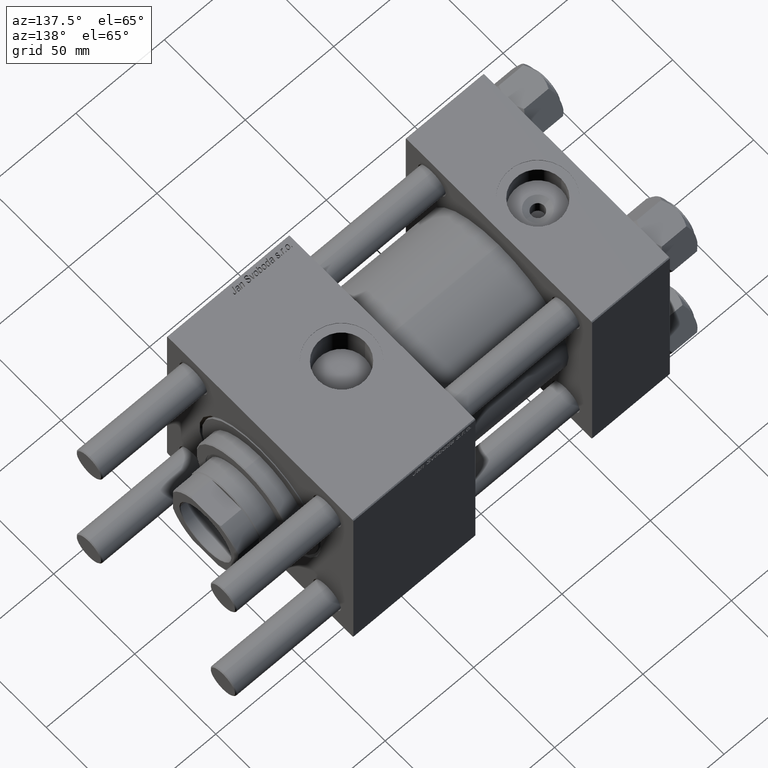
[diagram: clean part render]
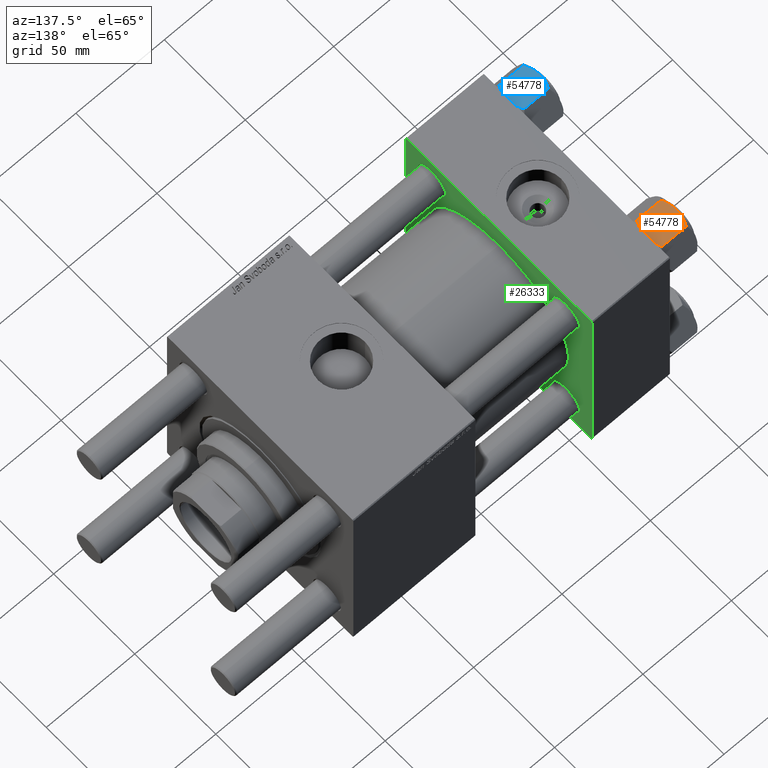
[diagram: same view with three faces highlighted in distinct colors, each labeled with its STEP entity id]
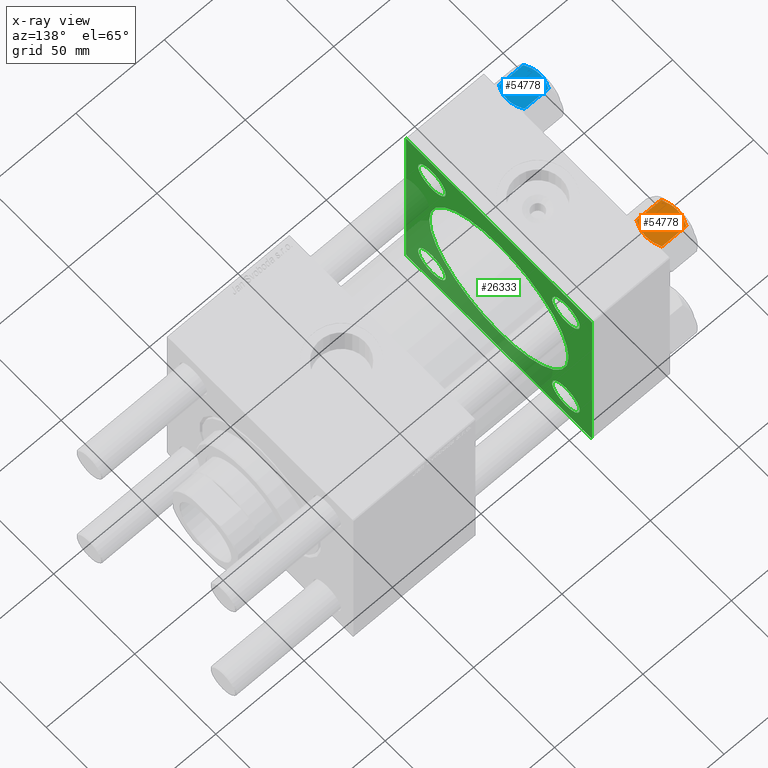
[diagram: x-ray of the same camera — body ghosted, the three highlighted faces saturated]
A machine part, auxiliary view with three faces highlighted in distinct colors.
The next image is the same camera in x-ray (body ghosted, the three faces saturated) — at least one of them is partly hidden behind the body in this view.
Their STEP definitions:

[orange] entity #54778 — the highlighted planar face has unit normal (-0, -0.0859, -0.9963).
#140 = DIRECTION ( 'NONE',  ( 1.000000000000000000, 2.221156819432531199E-16, -0.000000000000000000 ) ) ;
#253 = DIRECTION ( 'NONE',  ( 1.000000000000000000, 2.221156819432531199E-16, -0.000000000000000000 ) ) ;
#713 = CARTESIAN_POINT ( 'NONE',  ( -7.622943475354625242, -13.52731680711293727, -16.00000000000000000 ) ) ;
#2074 = CARTESIAN_POINT ( 'NONE',  ( 5.184073258379394922, -13.52731680711293549, -0.9481437906500860269 ) ) ;
#2230 = DIRECTION ( 'NONE',  ( -1.000000000000000000, -2.221156819432531199E-16, 0.000000000000000000 ) ) ;
#3925 = CARTESIAN_POINT ( 'NONE',  ( -3.287826776903143067, -13.52731680711293727, -17.61954155462465366 ) ) ;
#3980 = CARTESIAN_POINT ( 'NONE',  ( 2.638177715023103609, -13.52731680711293372, -17.79984593233010415 ) ) ;
#4050 = CARTESIAN_POINT ( 'NONE',  ( -7.030888348548045563, -13.52731680711293549, -1.709337883550298365 ) ) ;
#4112 = LINE ( 'NONE', #53209, #48652 ) ;
#4316 = ORIENTED_EDGE ( 'NONE', *, *, #39283, .F. ) ;
#5178 = LINE ( 'NONE', #22811, #38201 ) ;
#6988 = CARTESIAN_POINT ( 'NONE',  ( 4.557734399832408023, -13.52731680711293549, -0.7341470174115197755 ) ) ;
#7076 = DIRECTION ( 'NONE',  ( -2.221156819432531199E-16, 1.000000000000000000, 0.000000000000000000 ) ) ;
#7444 = CARTESIAN_POINT ( 'NONE',  ( 7.622943475354630571, -13.52731680711293372, -16.00000000000000000 ) ) ;
#7971 = ORIENTED_EDGE ( 'NONE', *, *, #43577, .F. ) ;
#8256 = ORIENTED_EDGE ( 'NONE', *, *, #55061, .T. ) ;
#8543 = CARTESIAN_POINT ( 'NONE',  ( -5.184073258379385152, -13.52731680711293727, -17.05185620934990709 ) ) ;
#9892 = CARTESIAN_POINT ( 'NONE',  ( 3.004629197474317274E-15, -13.52731680711292839, 0.000000000000000000 ) ) ;
#10160 = CARTESIAN_POINT ( 'NONE',  ( 7.810000000000002274, -13.52731680711293372, -16.00000000000000000 ) ) ;
#11169 = VERTEX_POINT ( 'NONE', #17509 ) ;
#11415 = PLANE ( 'NONE',  #36717 ) ;
#11909 = CARTESIAN_POINT ( 'NONE',  ( -7.622943475354625242, -13.52731680711293727, -2.000000000000000000 ) ) ;
#12090 = VERTEX_POINT ( 'NONE', #37434 ) ;
#12566 = DIRECTION ( 'NONE',  ( -0.000000000000000000, -0.000000000000000000, 1.000000000000000000 ) ) ;
#13004 = CARTESIAN_POINT ( 'NONE',  ( -5.189513245496318206, -13.52731680711293727, -0.9501108431732617765 ) ) ;
#16187 = ORIENTED_EDGE ( 'NONE', *, *, #52486, .F. ) ;
#16215 = ORIENTED_EDGE ( 'NONE', *, *, #20428, .F. ) ;
#16954 = LINE ( 'NONE', #43529, #27260 ) ;
#17351 = CARTESIAN_POINT ( 'NONE',  ( -6.427364677720459163, -13.52731680711293905, -1.438506937155141996 ) ) ;
#17509 = CARTESIAN_POINT ( 'NONE',  ( 7.810000000000002274, -13.52731680711293372, -1.999999999999998224 ) ) ;
#17788 = CARTESIAN_POINT ( 'NONE',  ( -0.3330234424833806162, -13.52731680711293727, -17.99999999999999645 ) ) ;
#18351 = CARTESIAN_POINT ( 'NONE',  ( -1.333889873825127026, -13.52731680711293727, -17.93843358996560156 ) ) ;
#18702 = EDGE_CURVE ( 'NONE', #12090, #36577, #16954, .T. ) ;
#19422 = CARTESIAN_POINT ( 'NONE',  ( 1.663410456966173623, -13.52731680711293549, -0.09804949135699765617 ) ) ;
#19524 = ORIENTED_EDGE ( 'NONE', *, *, #49442, .F. ) ;
#20173 = CARTESIAN_POINT ( 'NONE',  ( -7.809999999999999609, -13.52731680711293727, -16.00000000000000000 ) ) ;
#20428 = EDGE_CURVE ( 'NONE', #33784, #42801, #32140, .T. ) ;
#20549 = EDGE_LOOP ( 'NONE', ( #16215, #8256, #4316, #26729, #54445, #20798, #19524, #7971, #16187, #51028 ) ) ;
#20593 = EDGE_CURVE ( 'NONE', #36577, #24789, #42082, .T. ) ;
#20798 = ORIENTED_EDGE ( 'NONE', *, *, #18702, .F. ) ;
#22792 = CARTESIAN_POINT ( 'NONE',  ( 7.810000000000002274, -13.52731680711293372, -16.00000000000000000 ) ) ;
#22811 = CARTESIAN_POINT ( 'NONE',  ( 7.810000000000002274, -13.52731680711293372, -1.999999999999998224 ) ) ;
#23809 = VERTEX_POINT ( 'NONE', #41676 ) ;
#24051 = CARTESIAN_POINT ( 'NONE',  ( 2.644243758052987836, -13.52731680711294082, -0.2408281198024052883 ) ) ;
#24789 = VERTEX_POINT ( 'NONE', #9892 ) ;
#25364 = CARTESIAN_POINT ( 'NONE',  ( 3.004629197474316879E-15, -13.52731680711292661, -18.00000000000000000 ) ) ;
#26455 = CARTESIAN_POINT ( 'NONE',  ( 7.622943475354630571, -13.52731680711293372, -16.00000000000000000 ) ) ;
#26458 = CARTESIAN_POINT ( 'NONE',  ( -7.030203932307560244, -13.52731680711293372, -16.29099812210859710 ) ) ;
#26578 = CARTESIAN_POINT ( 'NONE',  ( -4.553769687922295972, -13.52731680711293727, -0.7327291995145203130 ) ) ;
#26729 = ORIENTED_EDGE ( 'NONE', *, *, #47137, .F. ) ;
#27260 = VECTOR ( 'NONE', #140, 1000.000000000000000 ) ;
#29060 = CARTESIAN_POINT ( 'NONE',  ( -7.809999999999999609, -13.52731680711293727, -18.00000000000000000 ) ) ;
#29255 = CARTESIAN_POINT ( 'NONE',  ( 3.287826776903151504, -13.52731680711293372, -0.3804584453753439566 ) ) ;
#30207 = DIRECTION ( 'NONE',  ( -1.000000000000000000, -2.221156819432531199E-16, 0.000000000000000000 ) ) ;
#30520 = CARTESIAN_POINT ( 'NONE',  ( -0.6693083573771156924, -13.52731680711293549, -17.98750666918891028 ) ) ;
#32140 = LINE ( 'NONE', #10160, #35039 ) ;
#32447 = VERTEX_POINT ( 'NONE', #38451 ) ;
#33784 = VERTEX_POINT ( 'NONE', #22792 ) ;
#35039 = VECTOR ( 'NONE', #56351, 1000.000000000000000 ) ;
#35630 = CARTESIAN_POINT ( 'NONE',  ( -7.622943475354625242, -13.52731680711293727, -16.00000000000000000 ) ) ;
#35702 = B_SPLINE_CURVE_WITH_KNOTS ( 'NONE', 3,
 ( #40324, #17788, #30520, #18351, #35713, #48696, #3925, #39195, #8543, #53308, #26458, #713 ),
 .UNSPECIFIED., .F., .F.,
 ( 4, 2, 2, 2, 2, 4 ),
 ( 0.02774433486126546416, 0.02873404020403549919, 0.02972374554680553421, 0.03170315623234560426, 0.03368256691788567431, 0.03566197760342574435 ),
 .UNSPECIFIED. ) ;
#35713 = CARTESIAN_POINT ( 'NONE',  ( -1.663410456966165407, -13.52731680711293727, -17.90195050864300086 ) ) ;
#36577 = VERTEX_POINT ( 'NONE', #11909 ) ;
#36717 = AXIS2_PLACEMENT_3D ( 'NONE', #46964, #7076, #30207 ) ;
#37229 = LINE ( 'NONE', #51068, #47561 ) ;
#37434 = CARTESIAN_POINT ( 'NONE',  ( -7.809999999999999609, -13.52731680711293727, -1.999999999999998224 ) ) ;
#38201 = VECTOR ( 'NONE', #253, 1000.000000000000000 ) ;
#38451 = CARTESIAN_POINT ( 'NONE',  ( 7.622943475354630571, -13.52731680711293372, -2.000000000000000000 ) ) ;
#38670 = CARTESIAN_POINT ( 'NONE',  ( 1.335584685993413956, -13.52731680711293194, -17.99999999999998934 ) ) ;
#39035 = CARTESIAN_POINT ( 'NONE',  ( -7.622943475354625242, -13.52731680711293727, -2.000000000000000000 ) ) ;
#39195 = CARTESIAN_POINT ( 'NONE',  ( -4.557734399832399141, -13.52731680711293905, -17.26585298258847700 ) ) ;
#39283 = EDGE_CURVE ( 'NONE', #32447, #11169, #5178, .T. ) ;
#39649 = B_SPLINE_CURVE_WITH_KNOTS ( 'NONE', 3,
 ( #7444, #47330, #56001, #51951, #56855, #3980, #38670, #25364 ),
 .UNSPECIFIED., .F., .F.,
 ( 4, 2, 2, 4 ),
 ( 0.01980594295952731870, 0.02179054093496185507, 0.02377513891039638796, 0.02774433486126546416 ),
 .UNSPECIFIED. ) ;
#40324 = CARTESIAN_POINT ( 'NONE',  ( 3.004629197474316879E-15, -13.52731680711292661, -18.00000000000000000 ) ) ;
#41407 = CARTESIAN_POINT ( 'NONE',  ( 3.004629197474317274E-15, -13.52731680711292839, 0.000000000000000000 ) ) ;
#41676 = CARTESIAN_POINT ( 'NONE',  ( 3.004629197474316879E-15, -13.52731680711292661, -18.00000000000000000 ) ) ;
#41684 = CARTESIAN_POINT ( 'NONE',  ( 0.3330234424833872775, -13.52731680711293727, -6.997621521583519172E-15 ) ) ;
#42082 = B_SPLINE_CURVE_WITH_KNOTS ( 'NONE', 3,
 ( #39035, #4050, #17351, #13004, #26578, #48256, #48541, #44492 ),
 .UNSPECIFIED., .F., .F.,
 ( 4, 2, 2, 4 ),
 ( 0.01980594295952730829, 0.02179054093496184813, 0.02377513891039638450, 0.02774433486126546416 ),
 .UNSPECIFIED. ) ;
#42248 = CARTESIAN_POINT ( 'NONE',  ( 7.030203932307570902, -13.52731680711293549, -1.709001877891393351 ) ) ;
#42801 = VERTEX_POINT ( 'NONE', #26455 ) ;
#43529 = CARTESIAN_POINT ( 'NONE',  ( 7.810000000000002274, -13.52731680711293372, -1.999999999999998224 ) ) ;
#43577 = EDGE_CURVE ( 'NONE', #55647, #51306, #37229, .T. ) ;
#44492 = CARTESIAN_POINT ( 'NONE',  ( 3.004629197474317274E-15, -13.52731680711292839, 0.000000000000000000 ) ) ;
#45418 = EDGE_CURVE ( 'NONE', #42801, #23809, #39649, .T. ) ;
#45754 = CARTESIAN_POINT ( 'NONE',  ( 7.622943475354630571, -13.52731680711293372, -2.000000000000000000 ) ) ;
#46685 = FACE_OUTER_BOUND ( 'NONE', #20549, .T. ) ;
#46964 = CARTESIAN_POINT ( 'NONE',  ( 7.810000000000002274, -13.52731680711293372, -18.00000000000000000 ) ) ;
#47110 = B_SPLINE_CURVE_WITH_KNOTS ( 'NONE', 3,
 ( #41407, #41684, #50913, #54681, #19422, #24051, #29255, #6988, #2074, #54402, #42248, #45754 ),
 .UNSPECIFIED., .F., .F.,
 ( 4, 2, 2, 2, 2, 4 ),
 ( 0.02774433486126546416, 0.02873404020403549919, 0.02972374554680553421, 0.03170315623234560426, 0.03368256691788567431, 0.03566197760342574435 ),
 .UNSPECIFIED. ) ;
#47137 = EDGE_CURVE ( 'NONE', #24789, #32447, #47110, .T. ) ;
#47330 = CARTESIAN_POINT ( 'NONE',  ( 7.030888348548049116, -13.52731680711293372, -16.29066211644970608 ) ) ;
#47561 = VECTOR ( 'NONE', #2230, 1000.000000000000000 ) ;
#48256 = CARTESIAN_POINT ( 'NONE',  ( -2.638177715023101388, -13.52731680711293905, -0.2001540676698907728 ) ) ;
#48541 = CARTESIAN_POINT ( 'NONE',  ( -1.335584685993408405, -13.52731680711293727, -6.728829732988161894E-15 ) ) ;
#48652 = VECTOR ( 'NONE', #56704, 1000.000000000000000 ) ;
#48696 = CARTESIAN_POINT ( 'NONE',  ( -2.644243758052979398, -13.52731680711293905, -17.75917188019759507 ) ) ;
#49442 = EDGE_CURVE ( 'NONE', #51306, #12090, #55623, .T. ) ;
#50913 = CARTESIAN_POINT ( 'NONE',  ( 0.6693083573771239081, -13.52731680711293549, -0.01249333081108778241 ) ) ;
#51028 = ORIENTED_EDGE ( 'NONE', *, *, #45418, .F. ) ;
#51068 = CARTESIAN_POINT ( 'NONE',  ( 7.810000000000002274, -13.52731680711293372, -16.00000000000000000 ) ) ;
#51306 = VERTEX_POINT ( 'NONE', #20173 ) ;
#51951 = CARTESIAN_POINT ( 'NONE',  ( 5.189513245496319094, -13.52731680711293372, -17.04988915682674033 ) ) ;
#52486 = EDGE_CURVE ( 'NONE', #23809, #55647, #35702, .T. ) ;
#53209 = CARTESIAN_POINT ( 'NONE',  ( 7.810000000000002274, -13.52731680711293372, -18.00000000000000000 ) ) ;
#53308 = CARTESIAN_POINT ( 'NONE',  ( -6.422751913021801151, -13.52731680711293905, -16.56349088907410305 ) ) ;
#54036 = VECTOR ( 'NONE', #12566, 1000.000000000000000 ) ;
#54402 = CARTESIAN_POINT ( 'NONE',  ( 6.422751913021812697, -13.52731680711293727, -1.436509110925896948 ) ) ;
#54445 = ORIENTED_EDGE ( 'NONE', *, *, #20593, .F. ) ;
#54681 = CARTESIAN_POINT ( 'NONE',  ( 1.333889873825134131, -13.52731680711293194, -0.06156641003440004034 ) ) ;
#54778 = ADVANCED_FACE ( 'NONE', ( #46685 ), #11415, .F. ) ;
#55061 = EDGE_CURVE ( 'NONE', #33784, #11169, #4112, .T. ) ;
#55623 = LINE ( 'NONE', #29060, #54036 ) ;
#55647 = VERTEX_POINT ( 'NONE', #35630 ) ;
#56001 = CARTESIAN_POINT ( 'NONE',  ( 6.427364677720458275, -13.52731680711293549, -16.56149306284486045 ) ) ;
#56351 = DIRECTION ( 'NONE',  ( -1.000000000000000000, -2.221156819432531199E-16, 0.000000000000000000 ) ) ;
#56704 = DIRECTION ( 'NONE',  ( -0.000000000000000000, -0.000000000000000000, 1.000000000000000000 ) ) ;
#56855 = CARTESIAN_POINT ( 'NONE',  ( 4.553769687922296860, -13.52731680711293372, -17.26727080048547691 ) ) ;

[blue] entity #54778 — the highlighted planar face has unit normal (-0, 0.0859, -0.9963).
#140 = DIRECTION ( 'NONE',  ( 1.000000000000000000, 2.221156819432531199E-16, -0.000000000000000000 ) ) ;
#253 = DIRECTION ( 'NONE',  ( 1.000000000000000000, 2.221156819432531199E-16, -0.000000000000000000 ) ) ;
#713 = CARTESIAN_POINT ( 'NONE',  ( -7.622943475354625242, -13.52731680711293727, -16.00000000000000000 ) ) ;
#2074 = CARTESIAN_POINT ( 'NONE',  ( 5.184073258379394922, -13.52731680711293549, -0.9481437906500860269 ) ) ;
#2230 = DIRECTION ( 'NONE',  ( -1.000000000000000000, -2.221156819432531199E-16, 0.000000000000000000 ) ) ;
#3925 = CARTESIAN_POINT ( 'NONE',  ( -3.287826776903143067, -13.52731680711293727, -17.61954155462465366 ) ) ;
#3980 = CARTESIAN_POINT ( 'NONE',  ( 2.638177715023103609, -13.52731680711293372, -17.79984593233010415 ) ) ;
#4050 = CARTESIAN_POINT ( 'NONE',  ( -7.030888348548045563, -13.52731680711293549, -1.709337883550298365 ) ) ;
#4112 = LINE ( 'NONE', #53209, #48652 ) ;
#4316 = ORIENTED_EDGE ( 'NONE', *, *, #39283, .F. ) ;
#5178 = LINE ( 'NONE', #22811, #38201 ) ;
#6988 = CARTESIAN_POINT ( 'NONE',  ( 4.557734399832408023, -13.52731680711293549, -0.7341470174115197755 ) ) ;
#7076 = DIRECTION ( 'NONE',  ( -2.221156819432531199E-16, 1.000000000000000000, 0.000000000000000000 ) ) ;
#7444 = CARTESIAN_POINT ( 'NONE',  ( 7.622943475354630571, -13.52731680711293372, -16.00000000000000000 ) ) ;
#7971 = ORIENTED_EDGE ( 'NONE', *, *, #43577, .F. ) ;
#8256 = ORIENTED_EDGE ( 'NONE', *, *, #55061, .T. ) ;
#8543 = CARTESIAN_POINT ( 'NONE',  ( -5.184073258379385152, -13.52731680711293727, -17.05185620934990709 ) ) ;
#9892 = CARTESIAN_POINT ( 'NONE',  ( 3.004629197474317274E-15, -13.52731680711292839, 0.000000000000000000 ) ) ;
#10160 = CARTESIAN_POINT ( 'NONE',  ( 7.810000000000002274, -13.52731680711293372, -16.00000000000000000 ) ) ;
#11169 = VERTEX_POINT ( 'NONE', #17509 ) ;
#11415 = PLANE ( 'NONE',  #36717 ) ;
#11909 = CARTESIAN_POINT ( 'NONE',  ( -7.622943475354625242, -13.52731680711293727, -2.000000000000000000 ) ) ;
#12090 = VERTEX_POINT ( 'NONE', #37434 ) ;
#12566 = DIRECTION ( 'NONE',  ( -0.000000000000000000, -0.000000000000000000, 1.000000000000000000 ) ) ;
#13004 = CARTESIAN_POINT ( 'NONE',  ( -5.189513245496318206, -13.52731680711293727, -0.9501108431732617765 ) ) ;
#16187 = ORIENTED_EDGE ( 'NONE', *, *, #52486, .F. ) ;
#16215 = ORIENTED_EDGE ( 'NONE', *, *, #20428, .F. ) ;
#16954 = LINE ( 'NONE', #43529, #27260 ) ;
#17351 = CARTESIAN_POINT ( 'NONE',  ( -6.427364677720459163, -13.52731680711293905, -1.438506937155141996 ) ) ;
#17509 = CARTESIAN_POINT ( 'NONE',  ( 7.810000000000002274, -13.52731680711293372, -1.999999999999998224 ) ) ;
#17788 = CARTESIAN_POINT ( 'NONE',  ( -0.3330234424833806162, -13.52731680711293727, -17.99999999999999645 ) ) ;
#18351 = CARTESIAN_POINT ( 'NONE',  ( -1.333889873825127026, -13.52731680711293727, -17.93843358996560156 ) ) ;
#18702 = EDGE_CURVE ( 'NONE', #12090, #36577, #16954, .T. ) ;
#19422 = CARTESIAN_POINT ( 'NONE',  ( 1.663410456966173623, -13.52731680711293549, -0.09804949135699765617 ) ) ;
#19524 = ORIENTED_EDGE ( 'NONE', *, *, #49442, .F. ) ;
#20173 = CARTESIAN_POINT ( 'NONE',  ( -7.809999999999999609, -13.52731680711293727, -16.00000000000000000 ) ) ;
#20428 = EDGE_CURVE ( 'NONE', #33784, #42801, #32140, .T. ) ;
#20549 = EDGE_LOOP ( 'NONE', ( #16215, #8256, #4316, #26729, #54445, #20798, #19524, #7971, #16187, #51028 ) ) ;
#20593 = EDGE_CURVE ( 'NONE', #36577, #24789, #42082, .T. ) ;
#20798 = ORIENTED_EDGE ( 'NONE', *, *, #18702, .F. ) ;
#22792 = CARTESIAN_POINT ( 'NONE',  ( 7.810000000000002274, -13.52731680711293372, -16.00000000000000000 ) ) ;
#22811 = CARTESIAN_POINT ( 'NONE',  ( 7.810000000000002274, -13.52731680711293372, -1.999999999999998224 ) ) ;
#23809 = VERTEX_POINT ( 'NONE', #41676 ) ;
#24051 = CARTESIAN_POINT ( 'NONE',  ( 2.644243758052987836, -13.52731680711294082, -0.2408281198024052883 ) ) ;
#24789 = VERTEX_POINT ( 'NONE', #9892 ) ;
#25364 = CARTESIAN_POINT ( 'NONE',  ( 3.004629197474316879E-15, -13.52731680711292661, -18.00000000000000000 ) ) ;
#26455 = CARTESIAN_POINT ( 'NONE',  ( 7.622943475354630571, -13.52731680711293372, -16.00000000000000000 ) ) ;
#26458 = CARTESIAN_POINT ( 'NONE',  ( -7.030203932307560244, -13.52731680711293372, -16.29099812210859710 ) ) ;
#26578 = CARTESIAN_POINT ( 'NONE',  ( -4.553769687922295972, -13.52731680711293727, -0.7327291995145203130 ) ) ;
#26729 = ORIENTED_EDGE ( 'NONE', *, *, #47137, .F. ) ;
#27260 = VECTOR ( 'NONE', #140, 1000.000000000000000 ) ;
#29060 = CARTESIAN_POINT ( 'NONE',  ( -7.809999999999999609, -13.52731680711293727, -18.00000000000000000 ) ) ;
#29255 = CARTESIAN_POINT ( 'NONE',  ( 3.287826776903151504, -13.52731680711293372, -0.3804584453753439566 ) ) ;
#30207 = DIRECTION ( 'NONE',  ( -1.000000000000000000, -2.221156819432531199E-16, 0.000000000000000000 ) ) ;
#30520 = CARTESIAN_POINT ( 'NONE',  ( -0.6693083573771156924, -13.52731680711293549, -17.98750666918891028 ) ) ;
#32140 = LINE ( 'NONE', #10160, #35039 ) ;
#32447 = VERTEX_POINT ( 'NONE', #38451 ) ;
#33784 = VERTEX_POINT ( 'NONE', #22792 ) ;
#35039 = VECTOR ( 'NONE', #56351, 1000.000000000000000 ) ;
#35630 = CARTESIAN_POINT ( 'NONE',  ( -7.622943475354625242, -13.52731680711293727, -16.00000000000000000 ) ) ;
#35702 = B_SPLINE_CURVE_WITH_KNOTS ( 'NONE', 3,
 ( #40324, #17788, #30520, #18351, #35713, #48696, #3925, #39195, #8543, #53308, #26458, #713 ),
 .UNSPECIFIED., .F., .F.,
 ( 4, 2, 2, 2, 2, 4 ),
 ( 0.02774433486126546416, 0.02873404020403549919, 0.02972374554680553421, 0.03170315623234560426, 0.03368256691788567431, 0.03566197760342574435 ),
 .UNSPECIFIED. ) ;
#35713 = CARTESIAN_POINT ( 'NONE',  ( -1.663410456966165407, -13.52731680711293727, -17.90195050864300086 ) ) ;
#36577 = VERTEX_POINT ( 'NONE', #11909 ) ;
#36717 = AXIS2_PLACEMENT_3D ( 'NONE', #46964, #7076, #30207 ) ;
#37229 = LINE ( 'NONE', #51068, #47561 ) ;
#37434 = CARTESIAN_POINT ( 'NONE',  ( -7.809999999999999609, -13.52731680711293727, -1.999999999999998224 ) ) ;
#38201 = VECTOR ( 'NONE', #253, 1000.000000000000000 ) ;
#38451 = CARTESIAN_POINT ( 'NONE',  ( 7.622943475354630571, -13.52731680711293372, -2.000000000000000000 ) ) ;
#38670 = CARTESIAN_POINT ( 'NONE',  ( 1.335584685993413956, -13.52731680711293194, -17.99999999999998934 ) ) ;
#39035 = CARTESIAN_POINT ( 'NONE',  ( -7.622943475354625242, -13.52731680711293727, -2.000000000000000000 ) ) ;
#39195 = CARTESIAN_POINT ( 'NONE',  ( -4.557734399832399141, -13.52731680711293905, -17.26585298258847700 ) ) ;
#39283 = EDGE_CURVE ( 'NONE', #32447, #11169, #5178, .T. ) ;
#39649 = B_SPLINE_CURVE_WITH_KNOTS ( 'NONE', 3,
 ( #7444, #47330, #56001, #51951, #56855, #3980, #38670, #25364 ),
 .UNSPECIFIED., .F., .F.,
 ( 4, 2, 2, 4 ),
 ( 0.01980594295952731870, 0.02179054093496185507, 0.02377513891039638796, 0.02774433486126546416 ),
 .UNSPECIFIED. ) ;
#40324 = CARTESIAN_POINT ( 'NONE',  ( 3.004629197474316879E-15, -13.52731680711292661, -18.00000000000000000 ) ) ;
#41407 = CARTESIAN_POINT ( 'NONE',  ( 3.004629197474317274E-15, -13.52731680711292839, 0.000000000000000000 ) ) ;
#41676 = CARTESIAN_POINT ( 'NONE',  ( 3.004629197474316879E-15, -13.52731680711292661, -18.00000000000000000 ) ) ;
#41684 = CARTESIAN_POINT ( 'NONE',  ( 0.3330234424833872775, -13.52731680711293727, -6.997621521583519172E-15 ) ) ;
#42082 = B_SPLINE_CURVE_WITH_KNOTS ( 'NONE', 3,
 ( #39035, #4050, #17351, #13004, #26578, #48256, #48541, #44492 ),
 .UNSPECIFIED., .F., .F.,
 ( 4, 2, 2, 4 ),
 ( 0.01980594295952730829, 0.02179054093496184813, 0.02377513891039638450, 0.02774433486126546416 ),
 .UNSPECIFIED. ) ;
#42248 = CARTESIAN_POINT ( 'NONE',  ( 7.030203932307570902, -13.52731680711293549, -1.709001877891393351 ) ) ;
#42801 = VERTEX_POINT ( 'NONE', #26455 ) ;
#43529 = CARTESIAN_POINT ( 'NONE',  ( 7.810000000000002274, -13.52731680711293372, -1.999999999999998224 ) ) ;
#43577 = EDGE_CURVE ( 'NONE', #55647, #51306, #37229, .T. ) ;
#44492 = CARTESIAN_POINT ( 'NONE',  ( 3.004629197474317274E-15, -13.52731680711292839, 0.000000000000000000 ) ) ;
#45418 = EDGE_CURVE ( 'NONE', #42801, #23809, #39649, .T. ) ;
#45754 = CARTESIAN_POINT ( 'NONE',  ( 7.622943475354630571, -13.52731680711293372, -2.000000000000000000 ) ) ;
#46685 = FACE_OUTER_BOUND ( 'NONE', #20549, .T. ) ;
#46964 = CARTESIAN_POINT ( 'NONE',  ( 7.810000000000002274, -13.52731680711293372, -18.00000000000000000 ) ) ;
#47110 = B_SPLINE_CURVE_WITH_KNOTS ( 'NONE', 3,
 ( #41407, #41684, #50913, #54681, #19422, #24051, #29255, #6988, #2074, #54402, #42248, #45754 ),
 .UNSPECIFIED., .F., .F.,
 ( 4, 2, 2, 2, 2, 4 ),
 ( 0.02774433486126546416, 0.02873404020403549919, 0.02972374554680553421, 0.03170315623234560426, 0.03368256691788567431, 0.03566197760342574435 ),
 .UNSPECIFIED. ) ;
#47137 = EDGE_CURVE ( 'NONE', #24789, #32447, #47110, .T. ) ;
#47330 = CARTESIAN_POINT ( 'NONE',  ( 7.030888348548049116, -13.52731680711293372, -16.29066211644970608 ) ) ;
#47561 = VECTOR ( 'NONE', #2230, 1000.000000000000000 ) ;
#48256 = CARTESIAN_POINT ( 'NONE',  ( -2.638177715023101388, -13.52731680711293905, -0.2001540676698907728 ) ) ;
#48541 = CARTESIAN_POINT ( 'NONE',  ( -1.335584685993408405, -13.52731680711293727, -6.728829732988161894E-15 ) ) ;
#48652 = VECTOR ( 'NONE', #56704, 1000.000000000000000 ) ;
#48696 = CARTESIAN_POINT ( 'NONE',  ( -2.644243758052979398, -13.52731680711293905, -17.75917188019759507 ) ) ;
#49442 = EDGE_CURVE ( 'NONE', #51306, #12090, #55623, .T. ) ;
#50913 = CARTESIAN_POINT ( 'NONE',  ( 0.6693083573771239081, -13.52731680711293549, -0.01249333081108778241 ) ) ;
#51028 = ORIENTED_EDGE ( 'NONE', *, *, #45418, .F. ) ;
#51068 = CARTESIAN_POINT ( 'NONE',  ( 7.810000000000002274, -13.52731680711293372, -16.00000000000000000 ) ) ;
#51306 = VERTEX_POINT ( 'NONE', #20173 ) ;
#51951 = CARTESIAN_POINT ( 'NONE',  ( 5.189513245496319094, -13.52731680711293372, -17.04988915682674033 ) ) ;
#52486 = EDGE_CURVE ( 'NONE', #23809, #55647, #35702, .T. ) ;
#53209 = CARTESIAN_POINT ( 'NONE',  ( 7.810000000000002274, -13.52731680711293372, -18.00000000000000000 ) ) ;
#53308 = CARTESIAN_POINT ( 'NONE',  ( -6.422751913021801151, -13.52731680711293905, -16.56349088907410305 ) ) ;
#54036 = VECTOR ( 'NONE', #12566, 1000.000000000000000 ) ;
#54402 = CARTESIAN_POINT ( 'NONE',  ( 6.422751913021812697, -13.52731680711293727, -1.436509110925896948 ) ) ;
#54445 = ORIENTED_EDGE ( 'NONE', *, *, #20593, .F. ) ;
#54681 = CARTESIAN_POINT ( 'NONE',  ( 1.333889873825134131, -13.52731680711293194, -0.06156641003440004034 ) ) ;
#54778 = ADVANCED_FACE ( 'NONE', ( #46685 ), #11415, .F. ) ;
#55061 = EDGE_CURVE ( 'NONE', #33784, #11169, #4112, .T. ) ;
#55623 = LINE ( 'NONE', #29060, #54036 ) ;
#55647 = VERTEX_POINT ( 'NONE', #35630 ) ;
#56001 = CARTESIAN_POINT ( 'NONE',  ( 6.427364677720458275, -13.52731680711293549, -16.56149306284486045 ) ) ;
#56351 = DIRECTION ( 'NONE',  ( -1.000000000000000000, -2.221156819432531199E-16, 0.000000000000000000 ) ) ;
#56704 = DIRECTION ( 'NONE',  ( -0.000000000000000000, -0.000000000000000000, 1.000000000000000000 ) ) ;
#56855 = CARTESIAN_POINT ( 'NONE',  ( 4.553769687922296860, -13.52731680711293372, -17.26727080048547691 ) ) ;

[green] entity #26333 — the highlighted planar face has unit normal (-1, 0, 0).
#47 = VERTEX_POINT ( 'NONE', #19966 ) ;
#741 = EDGE_CURVE ( 'NONE', #17237, #47, #50846, .T. ) ;
#1591 = CARTESIAN_POINT ( 'NONE',  ( 44.00000000000000000, 57.49999999999999289, 57.50000000000000711 ) ) ;
#1736 = VERTEX_POINT ( 'NONE', #12698 ) ;
#1747 = VERTEX_POINT ( 'NONE', #30337 ) ;
#2496 = EDGE_CURVE ( 'NONE', #1747, #25068, #48526, .T. ) ;
#2755 = VERTEX_POINT ( 'NONE', #8014 ) ;
#2871 = CARTESIAN_POINT ( 'NONE',  ( 44.00000000000000000, -57.50000000000000711, -57.00000000000000711 ) ) ;
#3118 = FACE_BOUND ( 'NONE', #24395, .T. ) ;
#3121 = EDGE_CURVE ( 'NONE', #37891, #47250, #21346, .T. ) ;
#3568 = ORIENTED_EDGE ( 'NONE', *, *, #15398, .F. ) ;
#3597 = CARTESIAN_POINT ( 'NONE',  ( 44.00000000000000000, 57.00000000000000711, 57.50000000000000711 ) ) ;
#4133 = EDGE_LOOP ( 'NONE', ( #37528, #3568 ) ) ;
#4450 = DIRECTION ( 'NONE',  ( 0.000000000000000000, 0.000000000000000000, 1.000000000000000000 ) ) ;
#4661 = EDGE_CURVE ( 'NONE', #17700, #1736, #47468, .T. ) ;
#5350 = VERTEX_POINT ( 'NONE', #11778 ) ;
#5540 = DIRECTION ( 'NONE',  ( 0.000000000000000000, 0.000000000000000000, 1.000000000000000000 ) ) ;
#6267 = DIRECTION ( 'NONE',  ( 0.000000000000000000, 0.000000000000000000, 1.000000000000000000 ) ) ;
#6748 = ORIENTED_EDGE ( 'NONE', *, *, #30290, .T. ) ;
#7097 = ORIENTED_EDGE ( 'NONE', *, *, #50435, .T. ) ;
#7107 = EDGE_CURVE ( 'NONE', #25068, #33691, #38298, .T. ) ;
#7122 = CARTESIAN_POINT ( 'NONE',  ( 44.00000000000000000, 41.34999999999999432, -41.35000000000000142 ) ) ;
#7546 = EDGE_CURVE ( 'NONE', #33691, #1736, #16763, .T. ) ;
#7892 = ORIENTED_EDGE ( 'NONE', *, *, #12112, .F. ) ;
#7946 = CIRCLE ( 'NONE', #49489, 8.500000000000035527 ) ;
#8014 = CARTESIAN_POINT ( 'NONE',  ( 44.00000000000000000, 2.663896022368408223E-15, -43.00000000000000000 ) ) ;
#8117 = VERTEX_POINT ( 'NONE', #45563 ) ;
#8194 = DIRECTION ( 'NONE',  ( -1.000000000000000000, 0.000000000000000000, -0.000000000000000000 ) ) ;
#8654 = CARTESIAN_POINT ( 'NONE',  ( 44.00000000000000000, -57.50000000000000711, 57.00000000000000711 ) ) ;
#10153 = CARTESIAN_POINT ( 'NONE',  ( 44.00000000000000000, 41.34999999999999432, -41.35000000000000142 ) ) ;
#10613 = CARTESIAN_POINT ( 'NONE',  ( 44.00000000000000000, -2.602085213965210642E-15, 0.000000000000000000 ) ) ;
#10626 = AXIS2_PLACEMENT_3D ( 'NONE', #21554, #39754, #39204 ) ;
#10997 = CARTESIAN_POINT ( 'NONE',  ( 44.00000000000000000, -57.50000000000000711, 57.00000000000000711 ) ) ;
#11068 = ORIENTED_EDGE ( 'NONE', *, *, #7546, .T. ) ;
#11658 = ORIENTED_EDGE ( 'NONE', *, *, #4661, .F. ) ;
#11778 = CARTESIAN_POINT ( 'NONE',  ( 44.00000000000000000, -41.34999999999998721, -32.84999999999997300 ) ) ;
#12033 = LINE ( 'NONE', #12618, #22264 ) ;
#12112 = EDGE_CURVE ( 'NONE', #23801, #35507, #23572, .T. ) ;
#12521 = EDGE_CURVE ( 'NONE', #39270, #1747, #35594, .T. ) ;
#12618 = CARTESIAN_POINT ( 'NONE',  ( 44.00000000000000000, 57.49999999999999289, -57.00000000000000711 ) ) ;
#12663 = DIRECTION ( 'NONE',  ( -0.000000000000000000, 0.000000000000000000, 1.000000000000000000 ) ) ;
#12698 = CARTESIAN_POINT ( 'NONE',  ( 44.00000000000000000, -57.00000000000000711, -57.50000000000000711 ) ) ;
#13985 = CARTESIAN_POINT ( 'NONE',  ( 44.00000000000000000, 41.34999999999999432, 49.85000000000003695 ) ) ;
#14719 = CARTESIAN_POINT ( 'NONE',  ( 44.00000000000000000, 57.00000000000000711, 57.50000000000000711 ) ) ;
#15145 = CIRCLE ( 'NONE', #42808, 43.00000000000000000 ) ;
#15398 = EDGE_CURVE ( 'NONE', #2755, #8117, #15145, .T. ) ;
#15524 = DIRECTION ( 'NONE',  ( 0.000000000000000000, 0.000000000000000000, 1.000000000000000000 ) ) ;
#15796 = AXIS2_PLACEMENT_3D ( 'NONE', #26424, #44047, #4450 ) ;
#16248 = CARTESIAN_POINT ( 'NONE',  ( 44.00000000000000000, 41.34999999999999432, -32.84999999999997300 ) ) ;
#16330 = CARTESIAN_POINT ( 'NONE',  ( 44.00000000000000000, -57.50000000000000711, 57.49999999999999289 ) ) ;
#16402 = AXIS2_PLACEMENT_3D ( 'NONE', #35912, #31563, #5540 ) ;
#16748 = VECTOR ( 'NONE', #26565, 1000.000000000000114 ) ;
#16763 = LINE ( 'NONE', #56622, #56418 ) ;
#16946 = DIRECTION ( 'NONE',  ( 1.000000000000000000, -0.000000000000000000, 0.000000000000000000 ) ) ;
#17119 = DIRECTION ( 'NONE',  ( 0.000000000000000000, -1.000000000000000000, -1.206764157201257045E-16 ) ) ;
#17207 = ORIENTED_EDGE ( 'NONE', *, *, #49435, .T. ) ;
#17237 = VERTEX_POINT ( 'NONE', #41393 ) ;
#17294 = PLANE ( 'NONE',  #53489 ) ;
#17700 = VERTEX_POINT ( 'NONE', #37268 ) ;
#18728 = EDGE_CURVE ( 'NONE', #23266, #44007, #54924, .T. ) ;
#18831 = CARTESIAN_POINT ( 'NONE',  ( 44.00000000000000000, -41.34999999999998721, -41.35000000000000853 ) ) ;
#19112 = DIRECTION ( 'NONE',  ( 0.000000000000000000, 0.000000000000000000, 1.000000000000000000 ) ) ;
#19966 = CARTESIAN_POINT ( 'NONE',  ( 44.00000000000000000, -41.34999999999998721, 49.85000000000004405 ) ) ;
#20684 = DIRECTION ( 'NONE',  ( 0.000000000000000000, 0.000000000000000000, 1.000000000000000000 ) ) ;
#20695 = DIRECTION ( 'NONE',  ( -1.000000000000000000, 0.000000000000000000, -0.000000000000000000 ) ) ;
#20744 = FACE_OUTER_BOUND ( 'NONE', #40009, .T. ) ;
#21319 = FACE_BOUND ( 'NONE', #40298, .T. ) ;
#21346 = CIRCLE ( 'NONE', #36150, 8.500000000000035527 ) ;
#21554 = CARTESIAN_POINT ( 'NONE',  ( 44.00000000000000000, 41.34999999999999432, 41.35000000000000142 ) ) ;
#21725 = VECTOR ( 'NONE', #47243, 1000.000000000000114 ) ;
#22264 = VECTOR ( 'NONE', #30254, 1000.000000000000114 ) ;
#22729 = VERTEX_POINT ( 'NONE', #22974 ) ;
#22974 = CARTESIAN_POINT ( 'NONE',  ( 44.00000000000000000, -41.34999999999998721, -49.85000000000004405 ) ) ;
#23266 = VERTEX_POINT ( 'NONE', #32089 ) ;
#23368 = ORIENTED_EDGE ( 'NONE', *, *, #2496, .T. ) ;
#23572 = LINE ( 'NONE', #1591, #56535 ) ;
#23801 = VERTEX_POINT ( 'NONE', #37070 ) ;
#24004 = ORIENTED_EDGE ( 'NONE', *, *, #24365, .T. ) ;
#24047 = CIRCLE ( 'NONE', #56343, 8.500000000000035527 ) ;
#24365 = EDGE_CURVE ( 'NONE', #47250, #37891, #24047, .T. ) ;
#24395 = EDGE_LOOP ( 'NONE', ( #28002, #51333 ) ) ;
#24478 = DIRECTION ( 'NONE',  ( 1.000000000000000000, -0.000000000000000000, 0.000000000000000000 ) ) ;
#25068 = VERTEX_POINT ( 'NONE', #10997 ) ;
#25349 = AXIS2_PLACEMENT_3D ( 'NONE', #57016, #8194, #34790 ) ;
#25941 = ORIENTED_EDGE ( 'NONE', *, *, #46244, .T. ) ;
#26240 = CARTESIAN_POINT ( 'NONE',  ( 44.00000000000000000, 0.000000000000000000, 0.000000000000000000 ) ) ;
#26333 = ADVANCED_FACE ( 'NONE', ( #30583, #21319, #38973, #3118, #57134, #20744 ), #17294, .F. ) ;
#26424 = CARTESIAN_POINT ( 'NONE',  ( 44.00000000000000000, -41.34999999999998721, 41.35000000000000853 ) ) ;
#26507 = EDGE_LOOP ( 'NONE', ( #56919, #52298 ) ) ;
#26565 = DIRECTION ( 'NONE',  ( -0.000000000000000000, -0.7071067811865376918, -0.7071067811865573427 ) ) ;
#27533 = EDGE_CURVE ( 'NONE', #8117, #2755, #27728, .T. ) ;
#27728 = CIRCLE ( 'NONE', #43397, 43.00000000000000000 ) ;
#27793 = DIRECTION ( 'NONE',  ( 0.000000000000000000, 0.000000000000000000, 1.000000000000000000 ) ) ;
#27964 = VECTOR ( 'NONE', #17119, 1000.000000000000000 ) ;
#28002 = ORIENTED_EDGE ( 'NONE', *, *, #18728, .T. ) ;
#29620 = AXIS2_PLACEMENT_3D ( 'NONE', #53129, #54282, #53708 ) ;
#29811 = EDGE_CURVE ( 'NONE', #47, #17237, #36065, .T. ) ;
#30254 = DIRECTION ( 'NONE',  ( -0.000000000000000000, 0.7071067811865376918, 0.7071067811865573427 ) ) ;
#30290 = EDGE_CURVE ( 'NONE', #17700, #35507, #12033, .T. ) ;
#30337 = CARTESIAN_POINT ( 'NONE',  ( 44.00000000000000000, -57.00000000000003553, 57.49999999999999289 ) ) ;
#30583 = FACE_BOUND ( 'NONE', #55347, .T. ) ;
#31563 = DIRECTION ( 'NONE',  ( -1.000000000000000000, 0.000000000000000000, -0.000000000000000000 ) ) ;
#32089 = CARTESIAN_POINT ( 'NONE',  ( 44.00000000000000000, 41.34999999999999432, 32.84999999999997300 ) ) ;
#33691 = VERTEX_POINT ( 'NONE', #2871 ) ;
#34629 = DIRECTION ( 'NONE',  ( -1.000000000000000000, 0.000000000000000000, -0.000000000000000000 ) ) ;
#34790 = DIRECTION ( 'NONE',  ( 0.000000000000000000, 0.000000000000000000, 1.000000000000000000 ) ) ;
#35507 = VERTEX_POINT ( 'NONE', #41062 ) ;
#35594 = LINE ( 'NONE', #43398, #27964 ) ;
#35912 = CARTESIAN_POINT ( 'NONE',  ( 44.00000000000000000, 41.34999999999999432, 41.35000000000000142 ) ) ;
#36065 = CIRCLE ( 'NONE', #29620, 8.500000000000035527 ) ;
#36150 = AXIS2_PLACEMENT_3D ( 'NONE', #10153, #57057, #27793 ) ;
#36488 = DIRECTION ( 'NONE',  ( -1.000000000000000000, 0.000000000000000000, -0.000000000000000000 ) ) ;
#37070 = CARTESIAN_POINT ( 'NONE',  ( 44.00000000000000000, 57.49999999999999289, 57.00000000000003553 ) ) ;
#37268 = CARTESIAN_POINT ( 'NONE',  ( 44.00000000000000000, 57.00000000000002132, -57.49999999999999289 ) ) ;
#37528 = ORIENTED_EDGE ( 'NONE', *, *, #27533, .F. ) ;
#37891 = VERTEX_POINT ( 'NONE', #56978 ) ;
#38298 = LINE ( 'NONE', #16330, #51016 ) ;
#38520 = CARTESIAN_POINT ( 'NONE',  ( 44.00000000000000000, 57.49999999999999289, -57.49999999999999289 ) ) ;
#38973 = FACE_BOUND ( 'NONE', #26507, .T. ) ;
#39204 = DIRECTION ( 'NONE',  ( 0.000000000000000000, 0.000000000000000000, 1.000000000000000000 ) ) ;
#39270 = VERTEX_POINT ( 'NONE', #14719 ) ;
#39754 = DIRECTION ( 'NONE',  ( -1.000000000000000000, 0.000000000000000000, -0.000000000000000000 ) ) ;
#40009 = EDGE_LOOP ( 'NONE', ( #11658, #6748, #7892, #17207, #43285, #23368, #44645, #11068 ) ) ;
#40298 = EDGE_LOOP ( 'NONE', ( #45276, #24004 ) ) ;
#41062 = CARTESIAN_POINT ( 'NONE',  ( 44.00000000000000000, 57.49999999999999289, -57.00000000000000711 ) ) ;
#41393 = CARTESIAN_POINT ( 'NONE',  ( 44.00000000000000000, -41.34999999999998721, 32.84999999999997300 ) ) ;
#42808 = AXIS2_PLACEMENT_3D ( 'NONE', #10613, #24478, #15524 ) ;
#43060 = DIRECTION ( 'NONE',  ( 0.000000000000000000, 0.7071067811865474617, -0.7071067811865474617 ) ) ;
#43202 = LINE ( 'NONE', #3597, #21725 ) ;
#43285 = ORIENTED_EDGE ( 'NONE', *, *, #12521, .T. ) ;
#43397 = AXIS2_PLACEMENT_3D ( 'NONE', #56515, #16946, #20684 ) ;
#43398 = CARTESIAN_POINT ( 'NONE',  ( 44.00000000000000000, 57.49999999999999289, 57.50000000000000711 ) ) ;
#44007 = VERTEX_POINT ( 'NONE', #13985 ) ;
#44047 = DIRECTION ( 'NONE',  ( -1.000000000000000000, 0.000000000000000000, -0.000000000000000000 ) ) ;
#44645 = ORIENTED_EDGE ( 'NONE', *, *, #7107, .T. ) ;
#45276 = ORIENTED_EDGE ( 'NONE', *, *, #3121, .T. ) ;
#45563 = CARTESIAN_POINT ( 'NONE',  ( 44.00000000000000000, -2.602085213965210642E-15, 43.00000000000000000 ) ) ;
#46244 = EDGE_CURVE ( 'NONE', #5350, #22729, #53947, .T. ) ;
#47243 = DIRECTION ( 'NONE',  ( 0.000000000000000000, -0.7071067811865573427, 0.7071067811865376918 ) ) ;
#47250 = VERTEX_POINT ( 'NONE', #16248 ) ;
#47468 = LINE ( 'NONE', #38520, #49990 ) ;
#48088 = DIRECTION ( 'NONE',  ( 0.000000000000000000, 0.000000000000000000, -1.000000000000000000 ) ) ;
#48526 = LINE ( 'NONE', #8654, #16748 ) ;
#49435 = EDGE_CURVE ( 'NONE', #23801, #39270, #43202, .T. ) ;
#49489 = AXIS2_PLACEMENT_3D ( 'NONE', #18831, #36488, #19112 ) ;
#49990 = VECTOR ( 'NONE', #52369, 1000.000000000000000 ) ;
#50435 = EDGE_CURVE ( 'NONE', #22729, #5350, #7946, .T. ) ;
#50846 = CIRCLE ( 'NONE', #15796, 8.500000000000035527 ) ;
#51016 = VECTOR ( 'NONE', #48088, 1000.000000000000000 ) ;
#51333 = ORIENTED_EDGE ( 'NONE', *, *, #55858, .T. ) ;
#52298 = ORIENTED_EDGE ( 'NONE', *, *, #29811, .T. ) ;
#52369 = DIRECTION ( 'NONE',  ( 0.000000000000000000, -1.000000000000000000, -1.206764157201257045E-16 ) ) ;
#53129 = CARTESIAN_POINT ( 'NONE',  ( 44.00000000000000000, -41.34999999999998721, 41.35000000000000853 ) ) ;
#53489 = AXIS2_PLACEMENT_3D ( 'NONE', #26240, #34629, #12663 ) ;
#53708 = DIRECTION ( 'NONE',  ( 0.000000000000000000, 0.000000000000000000, 1.000000000000000000 ) ) ;
#53947 = CIRCLE ( 'NONE', #25349, 8.500000000000035527 ) ;
#54282 = DIRECTION ( 'NONE',  ( -1.000000000000000000, 0.000000000000000000, -0.000000000000000000 ) ) ;
#54473 = DIRECTION ( 'NONE',  ( 0.000000000000000000, 0.000000000000000000, -1.000000000000000000 ) ) ;
#54924 = CIRCLE ( 'NONE', #10626, 8.500000000000035527 ) ;
#55347 = EDGE_LOOP ( 'NONE', ( #7097, #25941 ) ) ;
#55858 = EDGE_CURVE ( 'NONE', #44007, #23266, #57019, .T. ) ;
#56343 = AXIS2_PLACEMENT_3D ( 'NONE', #7122, #20695, #6267 ) ;
#56418 = VECTOR ( 'NONE', #43060, 1000.000000000000114 ) ;
#56515 = CARTESIAN_POINT ( 'NONE',  ( 44.00000000000000000, -2.602085213965210642E-15, 0.000000000000000000 ) ) ;
#56535 = VECTOR ( 'NONE', #54473, 1000.000000000000000 ) ;
#56622 = CARTESIAN_POINT ( 'NONE',  ( 44.00000000000000000, -57.00000000000000711, -57.50000000000000711 ) ) ;
#56919 = ORIENTED_EDGE ( 'NONE', *, *, #741, .T. ) ;
#56978 = CARTESIAN_POINT ( 'NONE',  ( 44.00000000000000000, 41.34999999999999432, -49.85000000000003695 ) ) ;
#57016 = CARTESIAN_POINT ( 'NONE',  ( 44.00000000000000000, -41.34999999999998721, -41.35000000000000853 ) ) ;
#57019 = CIRCLE ( 'NONE', #16402, 8.500000000000035527 ) ;
#57057 = DIRECTION ( 'NONE',  ( -1.000000000000000000, 0.000000000000000000, -0.000000000000000000 ) ) ;
#57134 = FACE_BOUND ( 'NONE', #4133, .T. ) ;